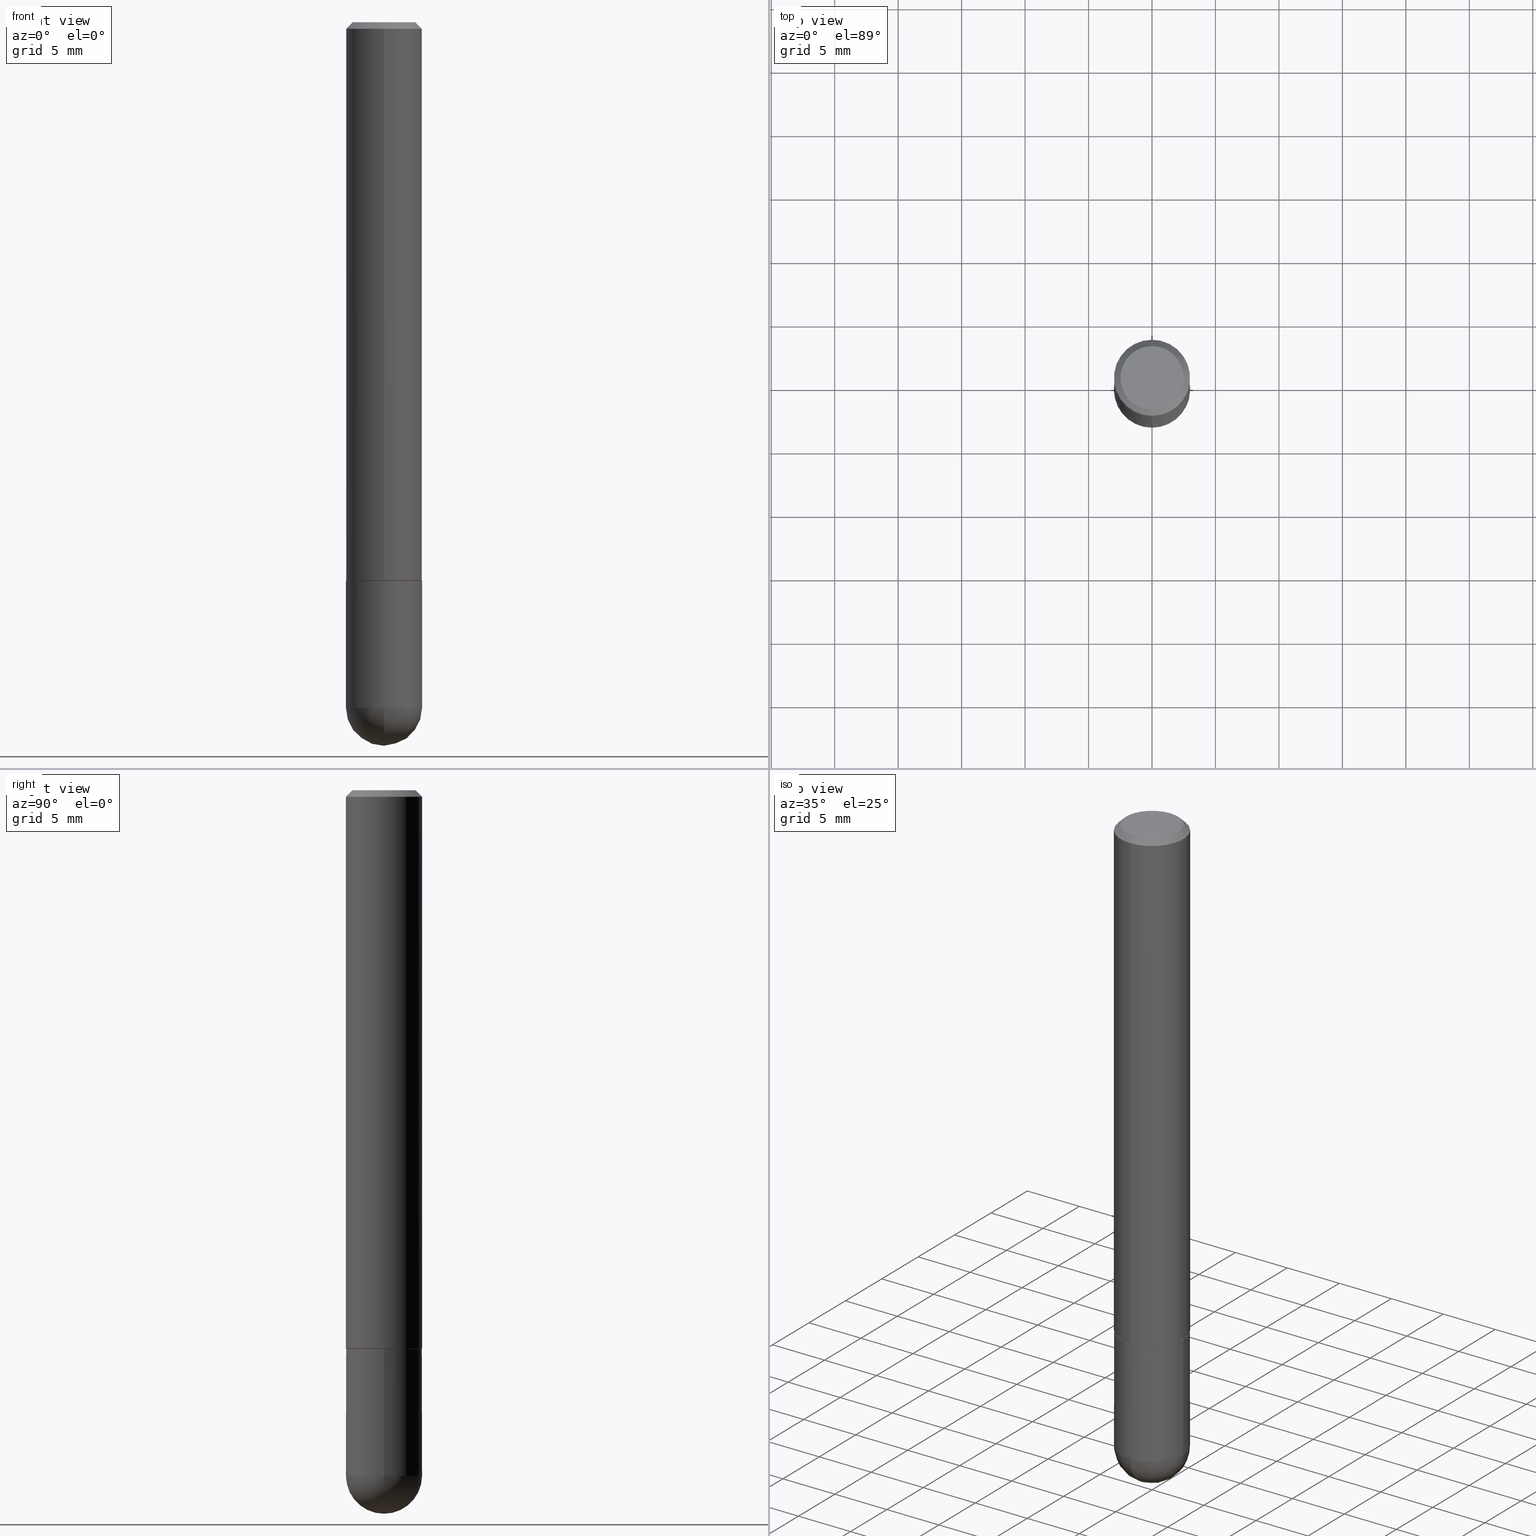
[diagram: canonical four-view strip — front | top / right | iso, engineering-drawing reading convention]
A machine part, canonical four-view strip (front | top / right | iso — engineering-drawing reading convention). The complete STEP part file that produces these views, byte-faithful:
ISO-10303-21;
HEADER;
FILE_DESCRIPTION (( 'STEP AP203' ),
    '1' );
FILE_NAME ('44573.STEP',
    '2024-04-10T11:45:34',
    ( '' ),
    ( '' ),
    'SwSTEP 2.0',
    'SolidWorks 2023',
    '' );
FILE_SCHEMA (( 'CONFIG_CONTROL_DESIGN' ));
ENDSEC;

DATA;
#1 = VERTEX_POINT ( 'NONE', #303 ) ;
#2 = DIRECTION ( 'NONE',  ( -2.445468806185136597E-29, 3.491481338843145583E-15, 1.000000000000000000 ) ) ;
#3 = AXIS2_PLACEMENT_3D ( 'NONE', #348, #98, #255 ) ;
#4 = MANIFOLD_SOLID_BREP ( 'Body-Move/Copy2[1]', #215 ) ;
#5 = FACE_OUTER_BOUND ( 'NONE', #219, .T. ) ;
#6 = EDGE_CURVE ( 'NONE', #373, #116, #262, .T. ) ;
#7 = DATE_AND_TIME ( #114, #352 ) ;
#8 = DIRECTION ( 'NONE',  ( 0.000000000000000000, 0.000000000000000000, 1.000000000000000000 ) ) ;
#9 = DIRECTION ( 'NONE',  ( 1.000000000000000000, -6.982962677686265133E-15, 0.000000000000000000 ) ) ;
#10 = VECTOR ( 'NONE', #81, 39.37007874015748143 ) ;
#11 = CALENDAR_DATE ( 2024, 10, 4 ) ;
#12 = EDGE_CURVE ( 'NONE', #335, #212, #366, .T. ) ;
#13 = DIRECTION ( 'NONE',  ( 2.445270548298389607E-29, -3.491765255421105394E-15, -1.000000000000000000 ) ) ;
#14 = DIRECTION ( 'NONE',  ( -1.000000000000000000, 6.982962677686265922E-15, -4.883557194083112901E-29 ) ) ;
#15 = CIRCLE ( 'NONE', #130, 0.1180999999999999966 ) ;
#16 = SECURITY_CLASSIFICATION ( '', '', #392 ) ;
#17 = EDGE_LOOP ( 'NONE', ( #159, #52 ) ) ;
#18 = ORIENTED_EDGE ( 'NONE', *, *, #208, .T. ) ;
#19 = ORIENTED_EDGE ( 'NONE', *, *, #22, .T. ) ;
#20 = CIRCLE ( 'NONE', #140, 0.1180999999999999966 ) ;
#21 = LOCAL_TIME ( 7, 45, 34.00000000000000000, #172 ) ;
#22 = EDGE_CURVE ( 'NONE', #385, #282, #376, .T. ) ;
#23 = EDGE_LOOP ( 'NONE', ( #90, #154, #279, #88, #216 ) ) ;
#24 = DIRECTION ( 'NONE',  ( 4.937700262164541731E-15, 0.7071067811865442421, -0.7071067811865507924 ) ) ;
#25 = DIRECTION ( 'NONE',  ( -1.000000000000000000, 6.982962677686265922E-15, -4.876176775795935793E-29 ) ) ;
#26 = ORIENTED_EDGE ( 'NONE', *, *, #315, .T. ) ;
#27 = CARTESIAN_POINT ( 'NONE',  ( -0.1180999999999999966, -5.896440253896576052E-15, -1.732299999999999951 ) ) ;
#28 = LINE ( 'NONE', #285, #211 ) ;
#29 = AXIS2_PLACEMENT_3D ( 'NONE', #302, #14, #274 ) ;
#30 = CONICAL_SURFACE ( 'NONE', #196, 0.1180999999999999966, 0.7853981633974471688 ) ;
#31 = CARTESIAN_POINT ( 'NONE',  ( 4.235942170817300554E-29, -6.048784951965981344E-15, -1.732299999999999951 ) ) ;
#32 = CYLINDRICAL_SURFACE ( 'NONE', #169, 0.1180999999999999966 ) ;
#33 = CARTESIAN_POINT ( 'NONE',  ( 4.890541096596784995E-31, -6.983530510842218825E-17, -0.02000000000000002470 ) ) ;
#34 = ORIENTED_EDGE ( 'NONE', *, *, #374, .T. ) ;
#35 = PERSON ( 'UNSPECIFIED', 'UNSPECIFIED', 'UNSPECIFIED', ('UNSPECIFIED'), ('UNSPECIFIED'), ('UNSPECIFIED') ) ;
#36 = CARTESIAN_POINT ( 'NONE',  ( 4.236285612954512392E-29, -6.048293123277981078E-15, -1.732299999999999951 ) ) ;
#37 = ORIENTED_EDGE ( 'NONE', *, *, #320, .F. ) ;
#38 = CALENDAR_DATE ( 2024, 10, 4 ) ;
#39 = AXIS2_PLACEMENT_3D ( 'NONE', #319, #92, #25 ) ;
#40 = LOCAL_TIME ( 7, 45, 34.00000000000000000, #267 ) ;
#41 = APPROVAL_STATUS ( 'not_yet_approved' ) ;
#42 = APPROVAL_STATUS ( 'not_yet_approved' ) ;
#43 = CARTESIAN_POINT ( 'NONE',  ( 4.236285612954512392E-29, -6.048293123277981078E-15, -1.732299999999999951 ) ) ;
#44 = CC_DESIGN_PERSON_AND_ORGANIZATION_ASSIGNMENT ( #109, #356, ( #16 ) ) ;
#45 = AXIS2_PLACEMENT_3D ( 'NONE', #36, #281, #193 ) ;
#46 = ORGANIZATION ( 'UNSPECIFIED', 'UNSPECIFIED', '' ) ;
#47 = ORIENTED_EDGE ( 'NONE', *, *, #48, .F. ) ;
#48 = EDGE_CURVE ( 'NONE', #124, #344, #247, .T. ) ;
#49 = ORIENTED_EDGE ( 'NONE', *, *, #22, .F. ) ;
#50 = APPLICATION_CONTEXT ( 'configuration controlled 3d designs of mechanical parts and assemblies' ) ;
#51 = AXIS2_PLACEMENT_3D ( 'NONE', #395, #13, #178 ) ;
#52 = ORIENTED_EDGE ( 'NONE', *, *, #320, .T. ) ;
#53 = CC_DESIGN_DATE_AND_TIME_ASSIGNMENT ( #237, #360, ( #265 ) ) ;
#54 = CARTESIAN_POINT ( 'NONE',  ( 4.235942170817300554E-29, -6.048784951965981344E-15, -1.732299999999999951 ) ) ;
#55 = VERTEX_POINT ( 'NONE', #294 ) ;
#56 = ORIENTED_EDGE ( 'NONE', *, *, #136, .T. ) ;
#57 = DIRECTION ( 'NONE',  ( -6.982962677686265922E-15, -1.000000000000000000, 4.626330217890361448E-15 ) ) ;
#58 = CARTESIAN_POINT ( 'NONE',  ( 4.235942170817300554E-29, -6.048784951965981344E-15, -1.732299999999999951 ) ) ;
#59 = EDGE_LOOP ( 'NONE', ( #280, #404, #309, #323 ) ) ;
#60 = DIRECTION ( 'NONE',  ( 5.024295867789091064E-15, 0.7071067811866947883, 0.7071067811864001351 ) ) ;
#61 = CARTESIAN_POINT ( 'NONE',  ( 8.246878922347992427E-16, 0.1180999999999924471, -2.126000000000000334 ) ) ;
#62 = DIRECTION ( 'NONE',  ( 2.445270548298389607E-29, -3.491765255421105394E-15, -1.000000000000000000 ) ) ;
#63 = AXIS2_PLACEMENT_3D ( 'NONE', #43, #365, #9 ) ;
#64 = CIRCLE ( 'NONE', #384, 0.1180999999999999966 ) ;
#65 = DIRECTION ( 'NONE',  ( -6.982962677686265922E-15, -1.000000000000000000, 2.332918867347791121E-15 ) ) ;
#66 = FACE_OUTER_BOUND ( 'NONE', #250, .T. ) ;
#67 = CARTESIAN_POINT ( 'NONE',  ( 0.1180999999999999966, -6.872981015512729341E-15, -1.732299999999999951 ) ) ;
#68 = ORIENTED_EDGE ( 'NONE', *, *, #12, .F. ) ;
#69 = ADVANCED_FACE ( 'NONE', ( #194 ), #30, .T. ) ;
#70 = CYLINDRICAL_SURFACE ( 'NONE', #227, 0.1181000000000001077 ) ;
#71 = APPROVAL_ROLE ( '' ) ;
#72 = CLOSED_SHELL ( 'NONE', ( #129, #236, #149, #69, #102, #177, #94, #214 ) ) ;
#73 = PERSON_AND_ORGANIZATION ( #35, #46 ) ;
#74 = EDGE_CURVE ( 'NONE', #1, #282, #15, .T. ) ;
#75 = APPLICATION_PROTOCOL_DEFINITION ( 'international standard', 'config_control_design', 1994, #50 ) ;
#76 = CARTESIAN_POINT ( 'NONE',  ( 8.246878922347484598E-16, 0.1180999999999999273, -0.02000000000000044104 ) ) ;
#77 = AXIS2_PLACEMENT_3D ( 'NONE', #246, #181, #273 ) ;
#78 = DIRECTION ( 'NONE',  ( -2.445270548298389607E-29, 3.491765255421105394E-15, 1.000000000000000000 ) ) ;
#79 = APPLICATION_CONTEXT ( 'configuration controlled 3d designs of mechanical parts and assemblies' ) ;
#80 = EDGE_CURVE ( 'NONE', #385, #232, #84, .T. ) ;
#81 = DIRECTION ( 'NONE',  ( -2.445468806185136877E-29, 3.491481338843145188E-15, 1.000000000000000000 ) ) ;
#82 = EDGE_LOOP ( 'NONE', ( #34, #251, #157, #245 ) ) ;
#83 = DIRECTION ( 'NONE',  ( -6.982962677686265922E-15, -1.000000000000000000, 4.626330217890361448E-15 ) ) ;
#84 = CIRCLE ( 'NONE', #253, 0.1181000000000002603 ) ;
#85 = PRODUCT_DEFINITION_FORMATION_WITH_SPECIFIED_SOURCE ( 'ANY', '', #126, .NOT_KNOWN. ) ;
#86 = ORIENTED_EDGE ( 'NONE', *, *, #244, .T. ) ;
#87 = ORIENTED_EDGE ( 'NONE', *, *, #208, .F. ) ;
#88 = ORIENTED_EDGE ( 'NONE', *, *, #12, .T. ) ;
#89 = DIRECTION ( 'NONE',  ( -4.937700262165559362E-15, -0.7071067811866899033, 0.7071067811864050201 ) ) ;
#90 = ORIENTED_EDGE ( 'NONE', *, *, #218, .F. ) ;
#91 = AXIS2_PLACEMENT_3D ( 'NONE', #54, #160, #405 ) ;
#92 = DIRECTION ( 'NONE',  ( 2.438088387897960049E-29, -3.491481338843145188E-15, -1.000000000000000000 ) ) ;
#93 = LINE ( 'NONE', #222, #142 ) ;
#94 = ADVANCED_FACE ( 'NONE', ( #226 ), #200, .F. ) ;
#95 = CARTESIAN_POINT ( 'NONE',  ( 0.000000000000000000, 0.000000000000000000, 0.000000000000000000 ) ) ;
#96 = LINE ( 'NONE', #310, #370 ) ;
#97 = CYLINDRICAL_SURFACE ( 'NONE', #284, 0.1181000000000001077 ) ;
#98 = DIRECTION ( 'NONE',  ( -2.445468806185136597E-29, 3.491481338843145583E-15, 1.000000000000000000 ) ) ;
#99 = CIRCLE ( 'NONE', #268, 0.1180999999999999966 ) ;
#100 = CARTESIAN_POINT ( 'NONE',  ( -1.253201207292542527E-45, 1.789529766643190272E-31, 5.125000209750278552E-17 ) ) ;
#101 = CARTESIAN_POINT ( 'NONE',  ( 8.391509709327007782E-16, 0.1180999999999941541, -1.731300000000000727 ) ) ;
#102 = ADVANCED_FACE ( 'NONE', ( #66 ), #70, .T. ) ;
#103 = ORIENTED_EDGE ( 'NONE', *, *, #205, .T. ) ;
#104 = CARTESIAN_POINT ( 'NONE',  ( 0.000000000000000000, 0.000000000000000000, 0.000000000000000000 ) ) ;
#105 = LINE ( 'NONE', #199, #239 ) ;
#106 = DIRECTION ( 'NONE',  ( 6.982962677686265922E-15, 1.000000000000000000, -3.505890868245046092E-15 ) ) ;
#107 = APPROVAL_DATE_TIME ( #118, #353 ) ;
#108 = COORDINATED_UNIVERSAL_TIME_OFFSET ( 5, 0, .BEHIND. ) ;
#109 = PERSON_AND_ORGANIZATION ( #35, #46 ) ;
#110 = AXIS2_PLACEMENT_3D ( 'NONE', #125, #406, #243 ) ;
#111 = CALENDAR_DATE ( 2024, 10, 4 ) ;
#112 = CARTESIAN_POINT ( 'NONE',  ( -8.177049295570194526E-16, -0.1171000000000060326, -1.732299999999999729 ) ) ;
#113 = FACE_OUTER_BOUND ( 'NONE', #306, .T. ) ;
#114 = CALENDAR_DATE ( 2024, 10, 4 ) ;
#115 = AXIS2_PLACEMENT_3D ( 'NONE', #104, #8, #329 ) ;
#116 = VERTEX_POINT ( 'NONE', #165 ) ;
#117 = VERTEX_POINT ( 'NONE', #137 ) ;
#118 = DATE_AND_TIME ( #111, #21 ) ;
#119 = ORIENTED_EDGE ( 'NONE', *, *, #249, .F. ) ;
#120 = CC_DESIGN_PERSON_AND_ORGANIZATION_ASSIGNMENT ( #386, #146, ( #85 ) ) ;
#121 = CONICAL_SURFACE ( 'NONE', #51, 0.1180999999999999966, 0.7853981633974471688 ) ;
#122 = APPROVAL_PERSON_ORGANIZATION ( #168, #151, #71 ) ;
#123 = ORIENTED_EDGE ( 'NONE', *, *, #6, .F. ) ;
#124 = VERTEX_POINT ( 'NONE', #101 ) ;
#125 = CARTESIAN_POINT ( 'NONE',  ( -1.253201207292542527E-45, 1.789529766643190272E-31, 5.125000209750278552E-17 ) ) ;
#126 = PRODUCT ( '44573', '44573', '', ( #145 ) ) ;
#127 = CARTESIAN_POINT ( 'NONE',  ( 4.233496900269002664E-29, -6.045293186710559956E-15, -1.731300000000000283 ) ) ;
#128 = DIRECTION ( 'NONE',  ( 1.000000000000000000, -6.982962677686265133E-15, 0.000000000000000000 ) ) ;
#129 = ADVANCED_FACE ( 'NONE', ( #292 ), #336, .T. ) ;
#130 = AXIS2_PLACEMENT_3D ( 'NONE', #133, #358, #144 ) ;
#131 = CARTESIAN_POINT ( 'NONE',  ( 5.199066681949599750E-29, -7.422889326380526631E-15, -2.125999999999999890 ) ) ;
#132 = CARTESIAN_POINT ( 'NONE',  ( -0.1180999999999999966, 8.391509709326782957E-16, -5.809262341591043784E-30 ) ) ;
#133 = CARTESIAN_POINT ( 'NONE',  ( 5.199066681949599750E-29, -7.422889326380526631E-15, -2.125999999999999890 ) ) ;
#134 = SPHERICAL_SURFACE ( 'NONE', #271, 0.1181000000000002603 ) ;
#135 = DIRECTION ( 'NONE',  ( -6.982962677686265922E-15, -1.000000000000000000, 3.505890868245046092E-15 ) ) ;
#136 = EDGE_CURVE ( 'NONE', #212, #340, #298, .T. ) ;
#137 = CARTESIAN_POINT ( 'NONE',  ( 8.355982572539207845E-16, 0.1170999999999939450, -1.732300000000000173 ) ) ;
#138 = ORIENTED_EDGE ( 'NONE', *, *, #80, .T. ) ;
#139 = APPROVAL_DATE_TIME ( #322, #296 ) ;
#140 = AXIS2_PLACEMENT_3D ( 'NONE', #378, #166, #317 ) ;
#141 = UNCERTAINTY_MEASURE_WITH_UNIT (LENGTH_MEASURE( 1.000000000000000082E-05 ), #389, 'distance_accuracy_value', 'NONE');
#142 = VECTOR ( 'NONE', #89, 39.37007874015748854 ) ;
#143 = CARTESIAN_POINT ( 'NONE',  ( 4.890541096596784995E-31, -6.983530510842218825E-17, -0.02000000000000002470 ) ) ;
#144 = DIRECTION ( 'NONE',  ( 1.000000000000000000, -6.982962677686265133E-15, 0.000000000000000000 ) ) ;
#145 = MECHANICAL_CONTEXT ( 'NONE', #50, 'mechanical' ) ;
#146 = PERSON_AND_ORGANIZATION_ROLE ( 'design_supplier' ) ;
#147 = PERSON_AND_ORGANIZATION_ROLE ( 'creator' ) ;
#148 = FACE_OUTER_BOUND ( 'NONE', #338, .T. ) ;
#149 = ADVANCED_FACE ( 'NONE', ( #113 ), #121, .T. ) ;
#150 = CARTESIAN_POINT ( 'NONE',  ( 0.1180999999999999966, -8.246878922347480654E-16, 5.758764772215000440E-30 ) ) ;
#151 = APPROVAL ( #42, 'UNSPECIFIED' ) ;
#152 = ORIENTED_EDGE ( 'NONE', *, *, #367, .T. ) ;
#153 = VERTEX_POINT ( 'NONE', #76 ) ;
#154 = ORIENTED_EDGE ( 'NONE', *, *, #74, .T. ) ;
#155 = AXIS2_PLACEMENT_3D ( 'NONE', #31, #163, #65 ) ;
#156 = ORIENTED_EDGE ( 'NONE', *, *, #195, .F. ) ;
#157 = ORIENTED_EDGE ( 'NONE', *, *, #270, .F. ) ;
#158 = LINE ( 'NONE', #132, #398 ) ;
#159 = ORIENTED_EDGE ( 'NONE', *, *, #6, .T. ) ;
#160 = DIRECTION ( 'NONE',  ( -2.445270548298389607E-29, 3.491765255421105394E-15, 1.000000000000000000 ) ) ;
#161 = AXIS2_PLACEMENT_3D ( 'NONE', #202, #78, #295 ) ;
#162 = CIRCLE ( 'NONE', #393, 0.1181000000000002048 ) ;
#163 = DIRECTION ( 'NONE',  ( -2.445270548298389607E-29, 3.491765255421105394E-15, 1.000000000000000000 ) ) ;
#164 = CC_DESIGN_DATE_AND_TIME_ASSIGNMENT ( #293, #359, ( #16 ) ) ;
#165 = CARTESIAN_POINT ( 'NONE',  ( -7.416198335591022079E-16, -0.09809999999999997888, 3.937921736543131328E-16 ) ) ;
#166 = DIRECTION ( 'NONE',  ( -2.445270548298389607E-29, 3.491765255421105394E-15, 1.000000000000000000 ) ) ;
#167 = DIRECTION ( 'NONE',  ( -2.445270548298389327E-29, 3.491765255421105394E-15, 1.000000000000000000 ) ) ;
#168 = PERSON_AND_ORGANIZATION ( #35, #46 ) ;
#169 = AXIS2_PLACEMENT_3D ( 'NONE', #288, #2, #346 ) ;
#170 = LENGTH_MEASURE_WITH_UNIT ( LENGTH_MEASURE( 0.02539999999999999897 ), #207 );
#171 = ADVANCED_FACE ( 'NONE', ( #148 ), #175, .T. ) ;
#172 = COORDINATED_UNIVERSAL_TIME_OFFSET ( 5, 0, .BEHIND. ) ;
#173 = APPLICATION_PROTOCOL_DEFINITION ( 'international standard', 'config_control_design', 1994, #79 ) ;
#174 = CC_DESIGN_APPROVAL ( #353, ( #16 ) ) ;
#175 = SPHERICAL_SURFACE ( 'NONE', #29, 0.1181000000000002603 ) ;
#176 = PERSON_AND_ORGANIZATION_ROLE ( 'design_owner' ) ;
#177 = ADVANCED_FACE ( 'NONE', ( #241 ), #330, .T. ) ;
#178 = DIRECTION ( 'NONE',  ( 6.982962677686265922E-15, 1.000000000000000000, -3.505890868245046092E-15 ) ) ;
#179 = CIRCLE ( 'NONE', #155, 0.1170999999999999958 ) ;
#180 = EDGE_CURVE ( 'NONE', #341, #117, #342, .T. ) ;
#181 = DIRECTION ( 'NONE',  ( -1.000000000000000000, 7.105427357601001070E-15, -4.926315508542082329E-29 ) ) ;
#182 = ORIENTED_EDGE ( 'NONE', *, *, #136, .F. ) ;
#183 = ORIENTED_EDGE ( 'NONE', *, *, #74, .F. ) ;
#184 = ORIENTED_EDGE ( 'NONE', *, *, #80, .F. ) ;
#185 = ORIENTED_EDGE ( 'NONE', *, *, #249, .T. ) ;
#186 = ORIENTED_EDGE ( 'NONE', *, *, #403, .F. ) ;
#187 = AXIS2_PLACEMENT_3D ( 'NONE', #264, #357, #189 ) ;
#188 = ORIENTED_EDGE ( 'NONE', *, *, #254, .F. ) ;
#189 = DIRECTION ( 'NONE',  ( 1.000000000000000000, -6.982962677686265133E-15, 0.000000000000000000 ) ) ;
#190 = DIMENSIONAL_EXPONENTS ( 1.000000000000000000, 0.000000000000000000, 0.000000000000000000, 0.000000000000000000, 0.000000000000000000, 0.000000000000000000, 0.000000000000000000 ) ;
#191 = CARTESIAN_POINT ( 'NONE',  ( 0.1180999999999999966, -7.560279117064003300E-15, -2.125999999999999890 ) ) ;
#192 = DIRECTION ( 'NONE',  ( 6.982962677686265133E-15, 1.000000000000000000, 0.000000000000000000 ) ) ;
#193 = DIRECTION ( 'NONE',  ( 1.000000000000000000, -6.982962677686265133E-15, 0.000000000000000000 ) ) ;
#194 = FACE_OUTER_BOUND ( 'NONE', #364, .T. ) ;
#195 = EDGE_CURVE ( 'NONE', #124, #153, #349, .T. ) ;
#196 = AXIS2_PLACEMENT_3D ( 'NONE', #33, #62, #106 ) ;
#197 = AXIS2_PLACEMENT_3D ( 'NONE', #100, #408, #234 ) ;
#198 = DIRECTION ( 'NONE',  ( -2.445468806185136597E-29, 3.491481338843145583E-15, 1.000000000000000000 ) ) ;
#199 = CARTESIAN_POINT ( 'NONE',  ( -8.102248135368172434E-16, -0.1181000000000000660, -0.01999999999999961184 ) ) ;
#200 = PLANE ( 'NONE',  #307 ) ;
#201 = PERSON_AND_ORGANIZATION ( #35, #46 ) ;
#202 = CARTESIAN_POINT ( 'NONE',  ( 4.235942170817300554E-29, -6.048784951965981344E-15, -1.732299999999999951 ) ) ;
#203 = COORDINATED_UNIVERSAL_TIME_OFFSET ( 5, 0, .BEHIND. ) ;
#204 = AXIS2_PLACEMENT_3D ( 'NONE', #400, #368, #83 ) ;
#205 = EDGE_CURVE ( 'NONE', #117, #341, #179, .T. ) ;
#206 = PRODUCT_DEFINITION_SHAPE ( 'NONE', 'NONE',  #265 ) ;
#207 =( LENGTH_UNIT ( ) NAMED_UNIT ( * ) SI_UNIT ( $, .METRE. ) );
#208 = EDGE_CURVE ( 'NONE', #232, #1, #407, .T. ) ;
#209 =( NAMED_UNIT ( * ) PLANE_ANGLE_UNIT ( ) SI_UNIT ( $, .RADIAN. ) );
#210 = CIRCLE ( 'NONE', #45, 0.1180999999999999966 ) ;
#211 = VECTOR ( 'NONE', #257, 39.37007874015748143 ) ;
#212 = VERTEX_POINT ( 'NONE', #67 ) ;
#213 = ORIENTED_EDGE ( 'NONE', *, *, #315, .F. ) ;
#214 = ADVANCED_FACE ( 'NONE', ( #410 ), #321, .F. ) ;
#215 = CLOSED_SHELL ( 'NONE', ( #345, #171, #391, #300, #304 ) ) ;
#216 = ORIENTED_EDGE ( 'NONE', *, *, #244, .F. ) ;
#217 = ORIENTED_EDGE ( 'NONE', *, *, #381, .T. ) ;
#218 = EDGE_CURVE ( 'NONE', #1, #340, #158, .T. ) ;
#219 = EDGE_LOOP ( 'NONE', ( #18, #334, #182, #68, #399 ) ) ;
#220 = APPROVAL_PERSON_ORGANIZATION ( #201, #296, #238 ) ;
#221 = FACE_OUTER_BOUND ( 'NONE', #23, .T. ) ;
#222 = CARTESIAN_POINT ( 'NONE',  ( -8.177049295570194526E-16, -0.1171000000000060326, -1.732299999999999729 ) ) ;
#223 = DIRECTION ( 'NONE',  ( 2.445270548298389327E-29, -3.491765255421105394E-15, -1.000000000000000000 ) ) ;
#224 = CC_DESIGN_PERSON_AND_ORGANIZATION_ASSIGNMENT ( #394, #396, ( #265 ) ) ;
#225 = CARTESIAN_POINT ( 'NONE',  ( -8.391509709326287947E-16, -0.1181000000000077821, -2.125999999999999446 ) ) ;
#226 = FACE_OUTER_BOUND ( 'NONE', #390, .T. ) ;
#227 = AXIS2_PLACEMENT_3D ( 'NONE', #409, #235, #231 ) ;
#228 =( GEOMETRIC_REPRESENTATION_CONTEXT ( 3 ) GLOBAL_UNCERTAINTY_ASSIGNED_CONTEXT ( ( #141 ) ) GLOBAL_UNIT_ASSIGNED_CONTEXT ( ( #389, #209, #297 ) ) REPRESENTATION_CONTEXT ( 'NONE', 'WORKASPACE' ) );
#229 = CARTESIAN_POINT ( 'NONE',  ( 4.867946904035714063E-29, -7.897071694520576927E-15, -2.125999999999999890 ) ) ;
#230 = LINE ( 'NONE', #355, #299 ) ;
#231 = DIRECTION ( 'NONE',  ( -6.982962677686265133E-15, -1.000000000000000000, 3.491765255421105000E-15 ) ) ;
#232 = VERTEX_POINT ( 'NONE', #61 ) ;
#233 = APPROVAL_STATUS ( 'not_yet_approved' ) ;
#234 = DIRECTION ( 'NONE',  ( -6.982962677686265922E-15, -1.000000000000000000, 3.491765255421105394E-15 ) ) ;
#235 = DIRECTION ( 'NONE',  ( -2.445270548298389607E-29, 3.491765255421105394E-15, 1.000000000000000000 ) ) ;
#236 = ADVANCED_FACE ( 'NONE', ( #388 ), #97, .T. ) ;
#237 = DATE_AND_TIME ( #38, #318 ) ;
#238 = APPROVAL_ROLE ( '' ) ;
#239 = VECTOR ( 'NONE', #347, 39.37007874015748143 ) ;
#240 = CC_DESIGN_APPROVAL ( #151, ( #85 ) ) ;
#241 = FACE_OUTER_BOUND ( 'NONE', #305, .T. ) ;
#242 = COORDINATED_UNIVERSAL_TIME_OFFSET ( 5, 0, .BEHIND. ) ;
#243 = DIRECTION ( 'NONE',  ( -6.982962677686265922E-15, -1.000000000000000000, 3.491765255421105394E-15 ) ) ;
#244 = EDGE_CURVE ( 'NONE', #340, #212, #210, .T. ) ;
#245 = ORIENTED_EDGE ( 'NONE', *, *, #381, .F. ) ;
#246 = CARTESIAN_POINT ( 'NONE',  ( 4.867946904035714063E-29, -7.897071694520576927E-15, -2.125999999999999890 ) ) ;
#247 = CIRCLE ( 'NONE', #204, 0.1181000000000002048 ) ;
#248 = DIRECTION ( 'NONE',  ( -2.445270548298389607E-29, 3.491765255421105394E-15, 1.000000000000000000 ) ) ;
#249 = EDGE_CURVE ( 'NONE', #116, #55, #105, .T. ) ;
#250 = EDGE_LOOP ( 'NONE', ( #156, #276, #217, #213 ) ) ;
#251 = ORIENTED_EDGE ( 'NONE', *, *, #195, .T. ) ;
#252 = DIRECTION ( 'NONE',  ( -2.445468806185136597E-29, 3.491481338843145583E-15, 1.000000000000000000 ) ) ;
#253 = AXIS2_PLACEMENT_3D ( 'NONE', #259, #382, #192 ) ;
#254 = EDGE_CURVE ( 'NONE', #282, #335, #99, .T. ) ;
#255 = DIRECTION ( 'NONE',  ( 1.000000000000000000, -6.982962677686266711E-15, 4.876176775795936353E-29 ) ) ;
#256 = CARTESIAN_POINT ( 'NONE',  ( 5.199066681949599750E-29, -7.422889326380526631E-15, -2.125999999999999890 ) ) ;
#257 = DIRECTION ( 'NONE',  ( -2.445270548298389607E-29, 3.491765255421105394E-15, 1.000000000000000000 ) ) ;
#258 = DIRECTION ( 'NONE',  ( -6.982962677686265133E-15, -1.000000000000000000, 3.491765255421105000E-15 ) ) ;
#259 = CARTESIAN_POINT ( 'NONE',  ( 4.867946904035714063E-29, -7.897071694520576927E-15, -2.125999999999999890 ) ) ;
#260 = CARTESIAN_POINT ( 'NONE',  ( 5.161806526983783890E-29, -8.302184101288988852E-15, -2.244100000000000428 ) ) ;
#261 = DIRECTION ( 'NONE',  ( -2.445270548298389607E-29, 3.491765255421105394E-15, 1.000000000000000000 ) ) ;
#262 = CIRCLE ( 'NONE', #110, 0.09809999999999997888 ) ;
#263 = APPROVAL_DATE_TIME ( #7, #151 ) ;
#264 = CARTESIAN_POINT ( 'NONE',  ( 5.199066681949599750E-29, -7.422889326380526631E-15, -2.125999999999999890 ) ) ;
#265 = PRODUCT_DEFINITION ( 'UNKNOWN', '', #85, #387 ) ;
#266 = EDGE_LOOP ( 'NONE', ( #56, #86 ) ) ;
#267 = COORDINATED_UNIVERSAL_TIME_OFFSET ( 5, 0, .BEHIND. ) ;
#268 = AXIS2_PLACEMENT_3D ( 'NONE', #131, #198, #128 ) ;
#269 = PERSON_AND_ORGANIZATION ( #35, #46 ) ;
#270 = EDGE_CURVE ( 'NONE', #55, #153, #20, .T. ) ;
#271 = AXIS2_PLACEMENT_3D ( 'NONE', #229, #375, #354 ) ;
#272 = APPROVAL_PERSON_ORGANIZATION ( #73, #353, #327 ) ;
#273 = DIRECTION ( 'NONE',  ( -7.105427357601000281E-15, -1.000000000000000000, 0.000000000000000000 ) ) ;
#274 = DIRECTION ( 'NONE',  ( 6.982962677686265922E-15, 1.000000000000000000, -4.626330217890359870E-15 ) ) ;
#275 = ORIENTED_EDGE ( 'NONE', *, *, #403, .T. ) ;
#276 = ORIENTED_EDGE ( 'NONE', *, *, #48, .T. ) ;
#277 = PRODUCT_RELATED_PRODUCT_CATEGORY ( 'detail', '', ( #126 ) ) ;
#278 = ORIENTED_EDGE ( 'NONE', *, *, #326, .F. ) ;
#279 = ORIENTED_EDGE ( 'NONE', *, *, #254, .T. ) ;
#280 = ORIENTED_EDGE ( 'NONE', *, *, #180, .T. ) ;
#281 = DIRECTION ( 'NONE',  ( -2.445468806185136597E-29, 3.491481338843145583E-15, 1.000000000000000000 ) ) ;
#282 = VERTEX_POINT ( 'NONE', #225 ) ;
#283 = DIRECTION ( 'NONE',  ( 6.982962677686265922E-15, 1.000000000000000000, -3.491765255421105394E-15 ) ) ;
#284 = AXIS2_PLACEMENT_3D ( 'NONE', #95, #383, #258 ) ;
#285 = CARTESIAN_POINT ( 'NONE',  ( -8.246878922347486570E-16, -0.1181000000000001077, 4.123774766652328807E-16 ) ) ;
#286 = CARTESIAN_POINT ( 'NONE',  ( 8.391509709326788873E-16, 0.1181000000000001077, -4.123774766652328807E-16 ) ) ;
#287 = CARTESIAN_POINT ( 'NONE',  ( 7.548582654578854574E-16, 0.09809999999999997888, -2.912921694593075864E-16 ) ) ;
#288 = CARTESIAN_POINT ( 'NONE',  ( 0.000000000000000000, 0.000000000000000000, 0.000000000000000000 ) ) ;
#289 = ORIENTED_EDGE ( 'NONE', *, *, #270, .T. ) ;
#290 = DIRECTION ( 'NONE',  ( -2.445270548298389607E-29, 3.491765255421105394E-15, 1.000000000000000000 ) ) ;
#291 = PLANE ( 'NONE',  #39 ) ;
#292 = FACE_OUTER_BOUND ( 'NONE', #59, .T. ) ;
#293 = DATE_AND_TIME ( #362, #343 ) ;
#294 = CARTESIAN_POINT ( 'NONE',  ( -8.102248135368172434E-16, -0.1181000000000000660, -0.01999999999999961184 ) ) ;
#295 = DIRECTION ( 'NONE',  ( -6.982962677686265922E-15, -1.000000000000000000, 2.332918867347791121E-15 ) ) ;
#296 = APPROVAL ( #233, 'UNSPECIFIED' ) ;
#297 =( NAMED_UNIT ( * ) SI_UNIT ( $, .STERADIAN. ) SOLID_ANGLE_UNIT ( ) );
#298 = CIRCLE ( 'NONE', #63, 0.1180999999999999966 ) ;
#299 = VECTOR ( 'NONE', #60, 39.37007874015748854 ) ;
#300 = ADVANCED_FACE ( 'NONE', ( #314 ), #291, .F. ) ;
#301 = CC_DESIGN_APPROVAL ( #296, ( #265 ) ) ;
#302 = CARTESIAN_POINT ( 'NONE',  ( 4.867946904035714063E-29, -7.897071694520576927E-15, -2.125999999999999890 ) ) ;
#303 = CARTESIAN_POINT ( 'NONE',  ( -0.1180999999999999966, -5.896440253896576841E-15, -2.125999999999999890 ) ) ;
#304 = ADVANCED_FACE ( 'NONE', ( #221 ), #32, .T. ) ;
#305 = EDGE_LOOP ( 'NONE', ( #278, #103, #152, #47 ) ) ;
#306 = EDGE_LOOP ( 'NONE', ( #37, #185, #289, #186 ) ) ;
#307 = AXIS2_PLACEMENT_3D ( 'NONE', #351, #167, #316 ) ;
#308 = CC_DESIGN_SECURITY_CLASSIFICATION ( #16, ( #85 ) ) ;
#309 = ORIENTED_EDGE ( 'NONE', *, *, #374, .F. ) ;
#310 = CARTESIAN_POINT ( 'NONE',  ( 8.246878922347484598E-16, 0.1180999999999999273, -0.02000000000000044104 ) ) ;
#311 = DIRECTION ( 'NONE',  ( 1.000000000000000000, -6.982962677686265133E-15, 0.000000000000000000 ) ) ;
#312 = ORIENTED_EDGE ( 'NONE', *, *, #180, .F. ) ;
#313 = CYLINDRICAL_SURFACE ( 'NONE', #3, 0.1180999999999999966 ) ;
#314 = FACE_OUTER_BOUND ( 'NONE', #266, .T. ) ;
#315 = EDGE_CURVE ( 'NONE', #153, #55, #64, .T. ) ;
#316 = DIRECTION ( 'NONE',  ( -6.982962677686265922E-15, -1.000000000000000000, 3.491765255421105394E-15 ) ) ;
#317 = DIRECTION ( 'NONE',  ( -6.982962677686265922E-15, -1.000000000000000000, 3.505890868245046092E-15 ) ) ;
#318 = LOCAL_TIME ( 7, 45, 34.00000000000000000, #108 ) ;
#319 = CARTESIAN_POINT ( 'NONE',  ( 8.246878922347902694E-16, 0.1180999999999939598, -1.732300000000000617 ) ) ;
#320 = EDGE_CURVE ( 'NONE', #116, #373, #402, .T. ) ;
#321 = PLANE ( 'NONE',  #401 ) ;
#322 = DATE_AND_TIME ( #11, #40 ) ;
#323 = ORIENTED_EDGE ( 'NONE', *, *, #367, .F. ) ;
#324 = AXIS2_PLACEMENT_3D ( 'NONE', #256, #252, #311 ) ;
#325 = PERSON_AND_ORGANIZATION ( #35, #46 ) ;
#326 = EDGE_CURVE ( 'NONE', #117, #124, #230, .T. ) ;
#327 = APPROVAL_ROLE ( '' ) ;
#328 = SHAPE_DEFINITION_REPRESENTATION ( #206, #371 ) ;
#329 = DIRECTION ( 'NONE',  ( 1.000000000000000000, 0.000000000000000000, 0.000000000000000000 ) ) ;
#330 = CONICAL_SURFACE ( 'NONE', #350, 0.1170999999999999958, 0.7853981633976532262 ) ;
#331 = CIRCLE ( 'NONE', #187, 0.1180999999999999966 ) ;
#332 = EDGE_CURVE ( 'NONE', #335, #232, #331, .T. ) ;
#333 = EDGE_LOOP ( 'NONE', ( #49, #138, #397, #188 ) ) ;
#334 = ORIENTED_EDGE ( 'NONE', *, *, #218, .T. ) ;
#335 = VERTEX_POINT ( 'NONE', #191 ) ;
#336 = CONICAL_SURFACE ( 'NONE', #161, 0.1170999999999999958, 0.7853981633976532262 ) ;
#337 = CC_DESIGN_PERSON_AND_ORGANIZATION_ASSIGNMENT ( #325, #147, ( #85 ) ) ;
#338 = EDGE_LOOP ( 'NONE', ( #184, #19, #183, #87 ) ) ;
#339 = DIRECTION ( 'NONE',  ( -6.982962677686265922E-15, -1.000000000000000000, 2.332918867347791121E-15 ) ) ;
#340 = VERTEX_POINT ( 'NONE', #27 ) ;
#341 = VERTEX_POINT ( 'NONE', #112 ) ;
#342 = CIRCLE ( 'NONE', #91, 0.1170999999999999958 ) ;
#343 = LOCAL_TIME ( 7, 45, 34.00000000000000000, #242 ) ;
#344 = VERTEX_POINT ( 'NONE', #361 ) ;
#345 = ADVANCED_FACE ( 'NONE', ( #5 ), #313, .T. ) ;
#346 = DIRECTION ( 'NONE',  ( 1.000000000000000000, -6.982962677686266711E-15, 4.876176775795936353E-29 ) ) ;
#347 = DIRECTION ( 'NONE',  ( -4.851104656540957964E-15, -0.7071067811865491270, -0.7071067811865459074 ) ) ;
#348 = CARTESIAN_POINT ( 'NONE',  ( 0.000000000000000000, 0.000000000000000000, 0.000000000000000000 ) ) ;
#349 = LINE ( 'NONE', #286, #369 ) ;
#350 = AXIS2_PLACEMENT_3D ( 'NONE', #58, #248, #339 ) ;
#351 = CARTESIAN_POINT ( 'NONE',  ( 4.235942170817300554E-29, -6.048784951965981344E-15, -1.732299999999999951 ) ) ;
#352 = LOCAL_TIME ( 7, 45, 34.00000000000000000, #203 ) ;
#353 = APPROVAL ( #41, 'UNSPECIFIED' ) ;
#354 = DIRECTION ( 'NONE',  ( 6.982962677686265922E-15, 1.000000000000000000, -4.626330217890359870E-15 ) ) ;
#355 = CARTESIAN_POINT ( 'NONE',  ( 8.320455435751194916E-16, 0.1170999999999939450, -1.732300000000000173 ) ) ;
#356 = PERSON_AND_ORGANIZATION_ROLE ( 'classification_officer' ) ;
#357 = DIRECTION ( 'NONE',  ( -2.445468806185136597E-29, 3.491481338843145583E-15, 1.000000000000000000 ) ) ;
#358 = DIRECTION ( 'NONE',  ( -2.445468806185136597E-29, 3.491481338843145583E-15, 1.000000000000000000 ) ) ;
#359 = DATE_TIME_ROLE ( 'classification_date' ) ;
#360 = DATE_TIME_ROLE ( 'creation_date' ) ;
#361 = CARTESIAN_POINT ( 'NONE',  ( -8.246878922347070446E-16, -0.1181000000000062417, -1.731299999999999617 ) ) ;
#362 = CALENDAR_DATE ( 2024, 10, 4 ) ;
#363 = CC_DESIGN_PERSON_AND_ORGANIZATION_ASSIGNMENT ( #269, #176, ( #126 ) ) ;
#364 = EDGE_LOOP ( 'NONE', ( #119, #123, #275, #26 ) ) ;
#365 = DIRECTION ( 'NONE',  ( -2.445468806185136597E-29, 3.491481338843145583E-15, 1.000000000000000000 ) ) ;
#366 = LINE ( 'NONE', #150, #10 ) ;
#367 = EDGE_CURVE ( 'NONE', #341, #344, #93, .T. ) ;
#368 = DIRECTION ( 'NONE',  ( -2.445270548298389607E-29, 3.491765255421105394E-15, 1.000000000000000000 ) ) ;
#369 = VECTOR ( 'NONE', #261, 39.37007874015748143 ) ;
#370 = VECTOR ( 'NONE', #24, 39.37007874015748143 ) ;
#371 = ADVANCED_BREP_SHAPE_REPRESENTATION ( '44573', ( #4, #411, #115 ), #228 ) ;
#372 = ORIENTED_EDGE ( 'NONE', *, *, #205, .F. ) ;
#373 = VERTEX_POINT ( 'NONE', #287 ) ;
#374 = EDGE_CURVE ( 'NONE', #344, #124, #162, .T. ) ;
#375 = DIRECTION ( 'NONE',  ( -1.000000000000000000, 6.982962677686265922E-15, -4.883557194083112901E-29 ) ) ;
#376 = CIRCLE ( 'NONE', #77, 0.1181000000000002603 ) ;
#377 = DIRECTION ( 'NONE',  ( -2.445468806185136877E-29, 3.491481338843145188E-15, 1.000000000000000000 ) ) ;
#378 = CARTESIAN_POINT ( 'NONE',  ( 4.890541096596784995E-31, -6.983530510842218825E-17, -0.02000000000000002470 ) ) ;
#379 = FACE_OUTER_BOUND ( 'NONE', #333, .T. ) ;
#380 = CARTESIAN_POINT ( 'NONE',  ( 6.850286386810225537E-16, 0.09809999999999997888, -3.169171705080589607E-16 ) ) ;
#381 = EDGE_CURVE ( 'NONE', #344, #55, #28, .T. ) ;
#382 = DIRECTION ( 'NONE',  ( 1.000000000000000000, -6.982962677686265922E-15, 4.883557194083112340E-29 ) ) ;
#383 = DIRECTION ( 'NONE',  ( -2.445270548298389607E-29, 3.491765255421105394E-15, 1.000000000000000000 ) ) ;
#384 = AXIS2_PLACEMENT_3D ( 'NONE', #143, #412, #135 ) ;
#385 = VERTEX_POINT ( 'NONE', #260 ) ;
#386 = PERSON_AND_ORGANIZATION ( #35, #46 ) ;
#387 = DESIGN_CONTEXT ( 'detailed design', #79, 'design' ) ;
#388 = FACE_OUTER_BOUND ( 'NONE', #82, .T. ) ;
#389 =( CONVERSION_BASED_UNIT ( 'INCH', #170 ) LENGTH_UNIT ( ) NAMED_UNIT ( #190 ) );
#390 = EDGE_LOOP ( 'NONE', ( #312, #372 ) ) ;
#391 = ADVANCED_FACE ( 'NONE', ( #379 ), #134, .T. ) ;
#392 = SECURITY_CLASSIFICATION_LEVEL ( 'unclassified' ) ;
#393 = AXIS2_PLACEMENT_3D ( 'NONE', #127, #290, #57 ) ;
#394 = PERSON_AND_ORGANIZATION ( #35, #46 ) ;
#395 = CARTESIAN_POINT ( 'NONE',  ( 4.890541096596784995E-31, -6.983530510842218825E-17, -0.02000000000000002470 ) ) ;
#396 = PERSON_AND_ORGANIZATION_ROLE ( 'creator' ) ;
#397 = ORIENTED_EDGE ( 'NONE', *, *, #332, .F. ) ;
#398 = VECTOR ( 'NONE', #377, 39.37007874015748143 ) ;
#399 = ORIENTED_EDGE ( 'NONE', *, *, #332, .T. ) ;
#400 = CARTESIAN_POINT ( 'NONE',  ( 4.233496900269002664E-29, -6.045293186710559956E-15, -1.731300000000000283 ) ) ;
#401 = AXIS2_PLACEMENT_3D ( 'NONE', #380, #223, #283 ) ;
#402 = CIRCLE ( 'NONE', #197, 0.09809999999999997888 ) ;
#403 = EDGE_CURVE ( 'NONE', #373, #153, #96, .T. ) ;
#404 = ORIENTED_EDGE ( 'NONE', *, *, #326, .T. ) ;
#405 = DIRECTION ( 'NONE',  ( -6.982962677686265922E-15, -1.000000000000000000, 2.332918867347791121E-15 ) ) ;
#406 = DIRECTION ( 'NONE',  ( -2.445270548298389607E-29, 3.491765255421105394E-15, 1.000000000000000000 ) ) ;
#407 = CIRCLE ( 'NONE', #324, 0.1180999999999999966 ) ;
#408 = DIRECTION ( 'NONE',  ( -2.445270548298389607E-29, 3.491765255421105394E-15, 1.000000000000000000 ) ) ;
#409 = CARTESIAN_POINT ( 'NONE',  ( 0.000000000000000000, 0.000000000000000000, 0.000000000000000000 ) ) ;
#410 = FACE_OUTER_BOUND ( 'NONE', #17, .T. ) ;
#411 = MANIFOLD_SOLID_BREP ( 'Body-Move/Copy2[2]', #72 ) ;
#412 = DIRECTION ( 'NONE',  ( -2.445270548298389607E-29, 3.491765255421105394E-15, 1.000000000000000000 ) ) ;
ENDSEC;
END-ISO-10303-21;
